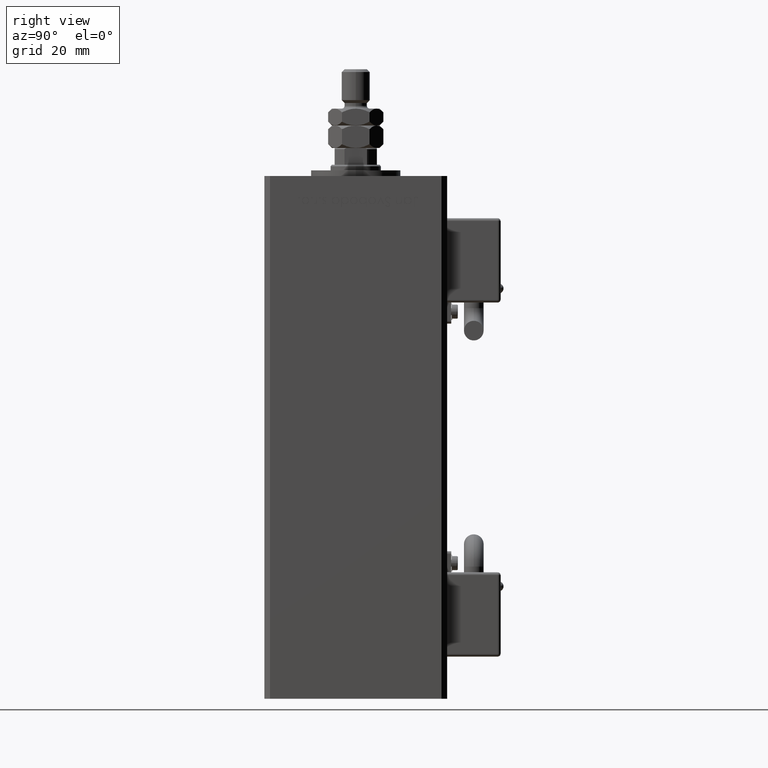
[diagram: clean part render]
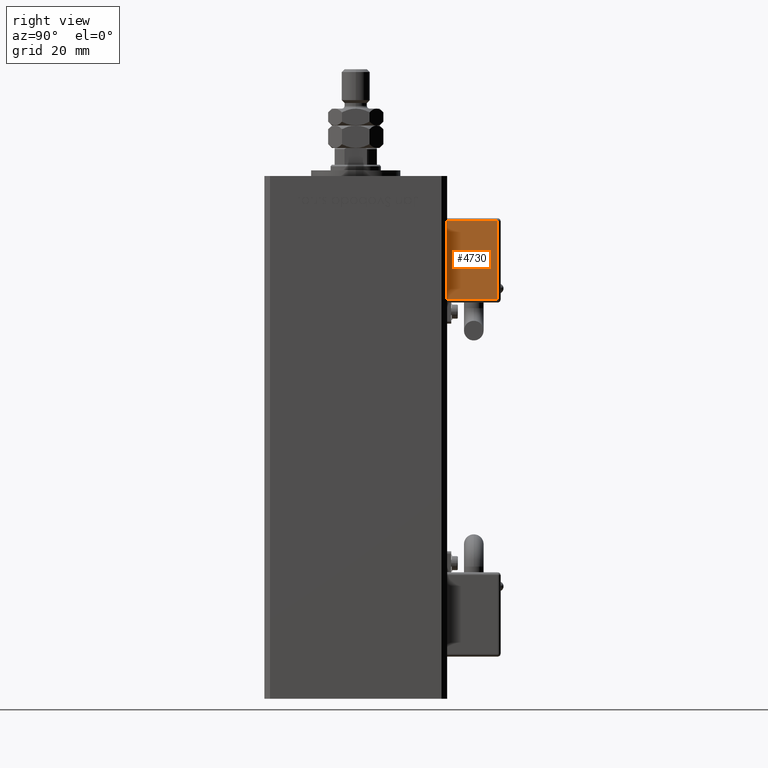
[diagram: same view with one face highlighted and labeled with its STEP entity id]
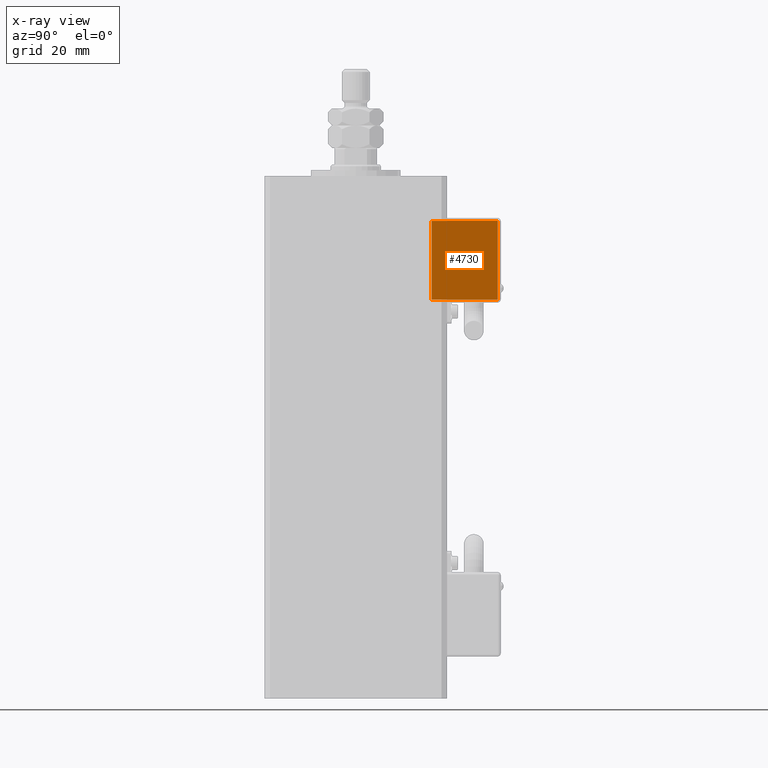
[diagram: x-ray of the same camera — body ghosted, the highlighted face saturated]
A machine part, right view. The second image highlights one B-rep face of the part: STEP entity #4730.
The next image is the same camera in x-ray: the body ghosted, the highlighted face saturated — about 0% of this face is hidden behind the body in this view.
In plain terms, the highlighted planar face has unit normal (1, 0, 0).
Its self-contained STEP definition (entity closure, byte-faithful):
#2920 = DIRECTION ( 'NONE',  ( 3.108624468950000014E-32, -1.000000000000000000, -1.400000000000000069E-16 ) ) ;
#4270 = LINE ( 'NONE', #30949, #17873 ) ;
#4490 = CARTESIAN_POINT ( 'NONE',  ( 10.80000000000000071, 27.00000000000000000, -54.00000000000000000 ) ) ;
#4610 = VERTEX_POINT ( 'NONE', #21578 ) ;
#4730 = ADVANCED_FACE ( 'NONE', ( #43385 ), #17545, .T. ) ;
#7548 = EDGE_LOOP ( 'NONE', ( #13991, #54528, #24251, #41784 ) ) ;
#9668 = EDGE_CURVE ( 'NONE', #52067, #4610, #28925, .T. ) ;
#13570 = LINE ( 'NONE', #31088, #54041 ) ;
#13991 = ORIENTED_EDGE ( 'NONE', *, *, #48973, .T. ) ;
#15427 = EDGE_CURVE ( 'NONE', #27741, #52067, #13570, .T. ) ;
#17545 = PLANE ( 'NONE',  #29513 ) ;
#17873 = VECTOR ( 'NONE', #53301, 1000.000000000000000 ) ;
#21578 = CARTESIAN_POINT ( 'NONE',  ( 10.80000000000000071, 50.50000000000000000, -26.00000000000000000 ) ) ;
#24251 = ORIENTED_EDGE ( 'NONE', *, *, #15427, .T. ) ;
#25021 = LINE ( 'NONE', #50266, #39188 ) ;
#27741 = VERTEX_POINT ( 'NONE', #4490 ) ;
#28925 = LINE ( 'NONE', #54465, #52567 ) ;
#29513 = AXIS2_PLACEMENT_3D ( 'NONE', #35062, #34215, #52551 ) ;
#30487 = EDGE_CURVE ( 'NONE', #48834, #27741, #4270, .T. ) ;
#30949 = CARTESIAN_POINT ( 'NONE',  ( 10.80000000000000071, 27.00000000000000000, -55.00000000000000000 ) ) ;
#31088 = CARTESIAN_POINT ( 'NONE',  ( 10.80000000000000071, 51.50000000000000000, -54.00000000000000000 ) ) ;
#31942 = CARTESIAN_POINT ( 'NONE',  ( 10.80000000000000071, 27.00000000000000000, -26.00000000000000000 ) ) ;
#34215 = DIRECTION ( 'NONE',  ( 1.000000000000000000, 4.930380657629929601E-32, 1.094764425253299406E-47 ) ) ;
#35062 = CARTESIAN_POINT ( 'NONE',  ( 10.80000000000000071, 26.00000000000000000, -55.00000000000000000 ) ) ;
#39188 = VECTOR ( 'NONE', #2920, 1000.000000000000000 ) ;
#41784 = ORIENTED_EDGE ( 'NONE', *, *, #9668, .T. ) ;
#43385 = FACE_OUTER_BOUND ( 'NONE', #7548, .T. ) ;
#48585 = DIRECTION ( 'NONE',  ( -3.108624468950000014E-32, 1.000000000000000000, 1.400000000000000069E-16 ) ) ;
#48834 = VERTEX_POINT ( 'NONE', #31942 ) ;
#48973 = EDGE_CURVE ( 'NONE', #4610, #48834, #25021, .T. ) ;
#49892 = DIRECTION ( 'NONE',  ( -2.220446049250000002E-16, -1.200000000000000024E-16, 1.000000000000000000 ) ) ;
#50266 = CARTESIAN_POINT ( 'NONE',  ( 10.80000000000000071, 26.00000000000000000, -26.00000000000000000 ) ) ;
#52067 = VERTEX_POINT ( 'NONE', #55875 ) ;
#52551 = DIRECTION ( 'NONE',  ( 0.000000000000000000, -2.220446049250000002E-16, 1.000000000000000000 ) ) ;
#52567 = VECTOR ( 'NONE', #49892, 1000.000000000000000 ) ;
#53301 = DIRECTION ( 'NONE',  ( 2.220446049250000002E-16, 1.200000000000000024E-16, -1.000000000000000000 ) ) ;
#54041 = VECTOR ( 'NONE', #48585, 1000.000000000000000 ) ;
#54465 = CARTESIAN_POINT ( 'NONE',  ( 10.80000000000000071, 50.50000000000000000, -25.00000000000000000 ) ) ;
#54528 = ORIENTED_EDGE ( 'NONE', *, *, #30487, .T. ) ;
#55875 = CARTESIAN_POINT ( 'NONE',  ( 10.80000000000000071, 50.50000000000000000, -54.00000000000000000 ) ) ;